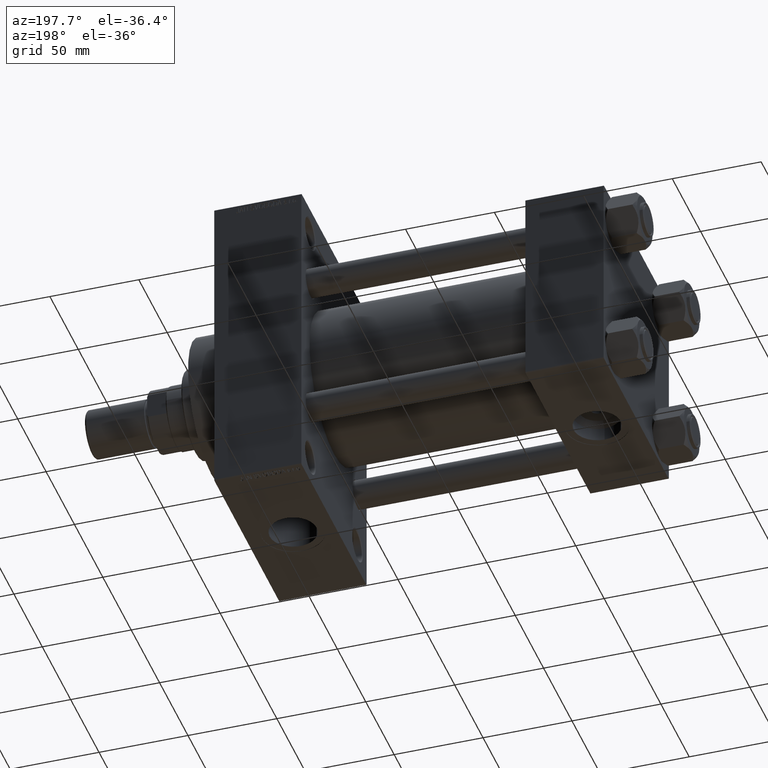
[diagram: clean part render]
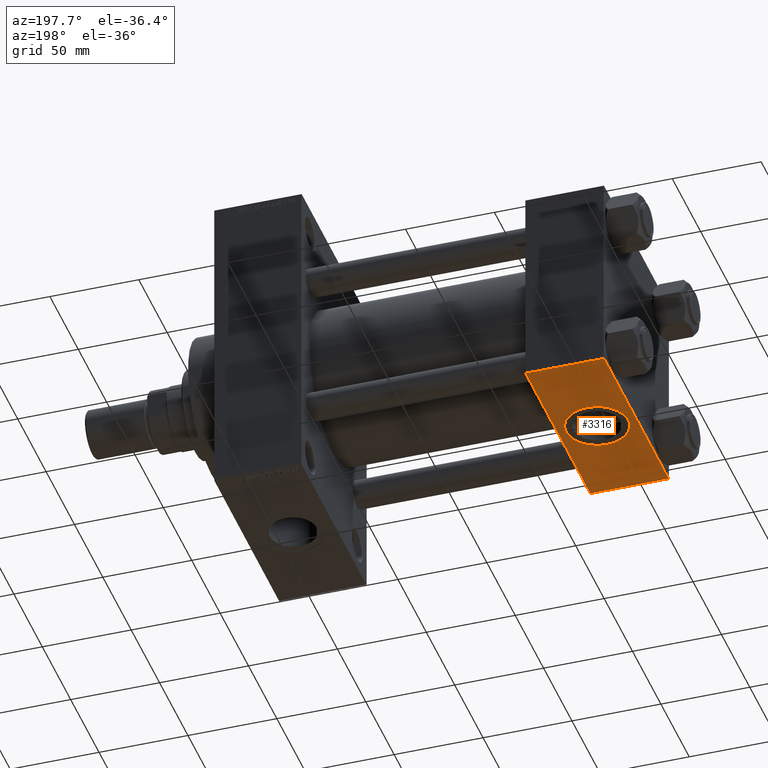
[diagram: same view with one face highlighted and labeled with its STEP entity id]
A machine part, auxiliary view. The second image highlights one B-rep face of the part: STEP entity #3316.
In plain terms, the highlighted planar face has unit normal (0, 0, -1).
Its self-contained STEP definition (entity closure, byte-faithful):
#301 = VERTEX_POINT ( 'NONE', #27160 ) ;
#337 = EDGE_CURVE ( 'NONE', #7938, #43033, #34506, .T. ) ;
#668 = LINE ( 'NONE', #20858, #23710 ) ;
#1097 = DIRECTION ( 'NONE',  ( 0.000000000000000000, -1.000000000000000000, -1.206764157201257045E-16 ) ) ;
#3316 = ADVANCED_FACE ( 'NONE', ( #45285, #10717 ), #15486, .T. ) ;
#3519 = CARTESIAN_POINT ( 'NONE',  ( 44.00000000000000000, 57.00000000000002132, -57.49999999999999289 ) ) ;
#3671 = VECTOR ( 'NONE', #12549, 1000.000000000000000 ) ;
#4046 = ORIENTED_EDGE ( 'NONE', *, *, #41986, .T. ) ;
#4713 = VECTOR ( 'NONE', #26029, 1000.000000000000000 ) ;
#6246 = VERTEX_POINT ( 'NONE', #16764 ) ;
#7938 = VERTEX_POINT ( 'NONE', #48677 ) ;
#10717 = FACE_OUTER_BOUND ( 'NONE', #45708, .T. ) ;
#11285 = CARTESIAN_POINT ( 'NONE',  ( 22.00000000000000711, 3.999741585953582455E-15, -57.50000000000000000 ) ) ;
#11470 = CARTESIAN_POINT ( 'NONE',  ( 22.00000000000001066, -17.50000000000000000, -57.50000000000000000 ) ) ;
#12549 = DIRECTION ( 'NONE',  ( 0.000000000000000000, -1.000000000000000000, -1.206764157201257045E-16 ) ) ;
#12793 = CARTESIAN_POINT ( 'NONE',  ( 44.00000000000000000, 57.49999999999999289, -57.49999999999999289 ) ) ;
#13864 = ORIENTED_EDGE ( 'NONE', *, *, #27995, .F. ) ;
#14322 = DIRECTION ( 'NONE',  ( 0.000000000000000000, -1.734723475976806848E-16, -1.000000000000000000 ) ) ;
#14933 = ORIENTED_EDGE ( 'NONE', *, *, #40551, .F. ) ;
#15308 = DIRECTION ( 'NONE',  ( 0.000000000000000000, -1.734723475976806848E-16, -1.000000000000000000 ) ) ;
#15486 = PLANE ( 'NONE',  #35298 ) ;
#16764 = CARTESIAN_POINT ( 'NONE',  ( 44.00000000000000000, -57.00000000000000711, -57.50000000000000711 ) ) ;
#17951 = EDGE_CURVE ( 'NONE', #6246, #38721, #668, .T. ) ;
#20858 = CARTESIAN_POINT ( 'NONE',  ( 0.000000000000000000, -57.00000000000000711, -57.50000000000000711 ) ) ;
#23710 = VECTOR ( 'NONE', #36219, 1000.000000000000000 ) ;
#25139 = ORIENTED_EDGE ( 'NONE', *, *, #35833, .T. ) ;
#26029 = DIRECTION ( 'NONE',  ( 1.000000000000000000, 0.000000000000000000, 0.000000000000000000 ) ) ;
#26096 = DIRECTION ( 'NONE',  ( 0.000000000000000000, 1.206764157201257045E-16, -1.000000000000000000 ) ) ;
#27160 = CARTESIAN_POINT ( 'NONE',  ( 0.000000000000000000, 57.00000000000002132, -57.49999999999999289 ) ) ;
#27659 = DIRECTION ( 'NONE',  ( 0.000000000000000000, 1.000000000000000000, 0.000000000000000000 ) ) ;
#27995 = EDGE_CURVE ( 'NONE', #43033, #7938, #46266, .T. ) ;
#28317 = CARTESIAN_POINT ( 'NONE',  ( 0.000000000000000000, -57.00000000000000711, -57.50000000000000711 ) ) ;
#28960 = VERTEX_POINT ( 'NONE', #3519 ) ;
#29691 = DIRECTION ( 'NONE',  ( 0.000000000000000000, 1.000000000000000000, 0.000000000000000000 ) ) ;
#30366 = EDGE_LOOP ( 'NONE', ( #49496, #13864 ) ) ;
#31620 = CARTESIAN_POINT ( 'NONE',  ( 0.000000000000000000, 57.49999999999999289, -57.49999999999999289 ) ) ;
#34506 = CIRCLE ( 'NONE', #35303, 17.50000000000000355 ) ;
#34847 = LINE ( 'NONE', #42437, #4713 ) ;
#35298 = AXIS2_PLACEMENT_3D ( 'NONE', #45533, #26096, #49573 ) ;
#35303 = AXIS2_PLACEMENT_3D ( 'NONE', #11285, #15308, #27659 ) ;
#35668 = LINE ( 'NONE', #31620, #40132 ) ;
#35833 = EDGE_CURVE ( 'NONE', #28960, #6246, #47357, .T. ) ;
#36219 = DIRECTION ( 'NONE',  ( -1.000000000000000000, 0.000000000000000000, 0.000000000000000000 ) ) ;
#38721 = VERTEX_POINT ( 'NONE', #28317 ) ;
#39629 = ORIENTED_EDGE ( 'NONE', *, *, #17951, .T. ) ;
#40132 = VECTOR ( 'NONE', #1097, 1000.000000000000000 ) ;
#40551 = EDGE_CURVE ( 'NONE', #301, #38721, #35668, .T. ) ;
#41986 = EDGE_CURVE ( 'NONE', #301, #28960, #34847, .T. ) ;
#42437 = CARTESIAN_POINT ( 'NONE',  ( 44.00000000000000000, 57.00000000000002132, -57.49999999999999289 ) ) ;
#43033 = VERTEX_POINT ( 'NONE', #11470 ) ;
#45285 = FACE_BOUND ( 'NONE', #30366, .T. ) ;
#45533 = CARTESIAN_POINT ( 'NONE',  ( 44.00000000000000000, 57.49999999999999289, -57.49999999999999289 ) ) ;
#45708 = EDGE_LOOP ( 'NONE', ( #14933, #4046, #25139, #39629 ) ) ;
#46266 = CIRCLE ( 'NONE', #47070, 17.50000000000000355 ) ;
#47070 = AXIS2_PLACEMENT_3D ( 'NONE', #48889, #14322, #29691 ) ;
#47357 = LINE ( 'NONE', #12793, #3671 ) ;
#48677 = CARTESIAN_POINT ( 'NONE',  ( 22.00000000000000711, 17.50000000000000711, -57.50000000000000000 ) ) ;
#48889 = CARTESIAN_POINT ( 'NONE',  ( 22.00000000000000711, 3.999741585953582455E-15, -57.50000000000000000 ) ) ;
#49496 = ORIENTED_EDGE ( 'NONE', *, *, #337, .F. ) ;
#49573 = DIRECTION ( 'NONE',  ( 0.000000000000000000, 1.000000000000000000, 1.206764157201257045E-16 ) ) ;